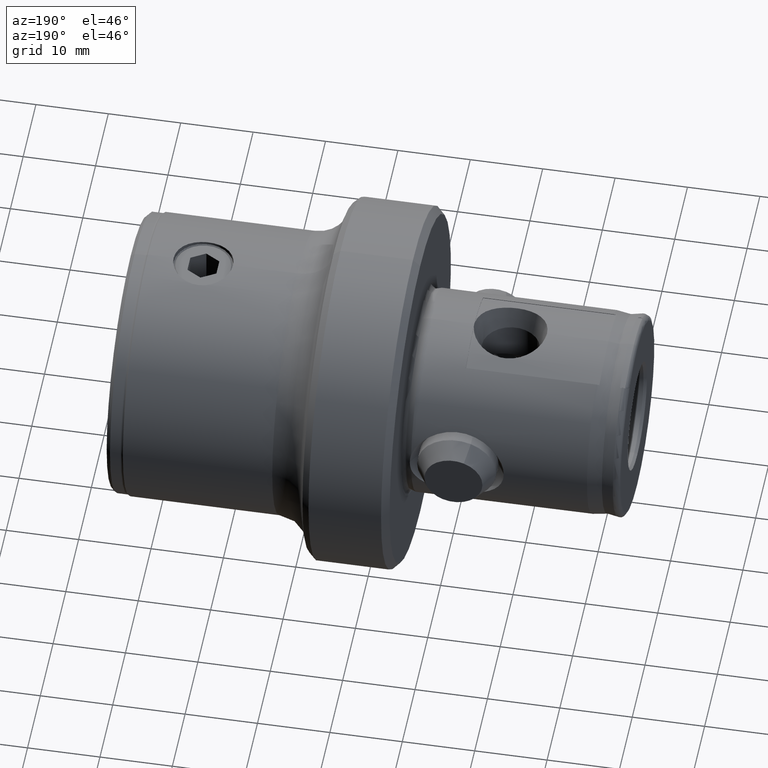
[diagram: clean part render]
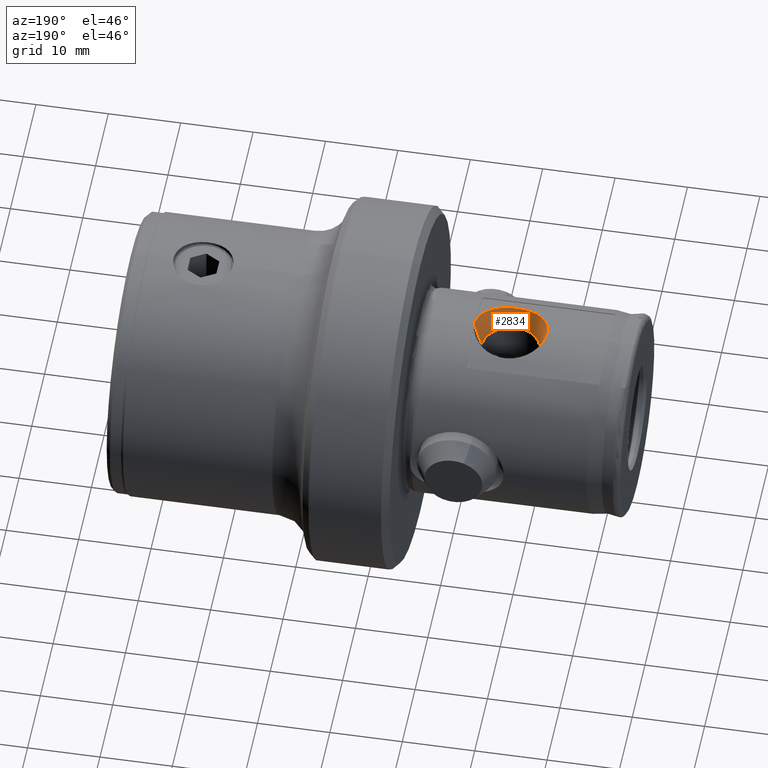
[diagram: same view with one face highlighted and labeled with its STEP entity id]
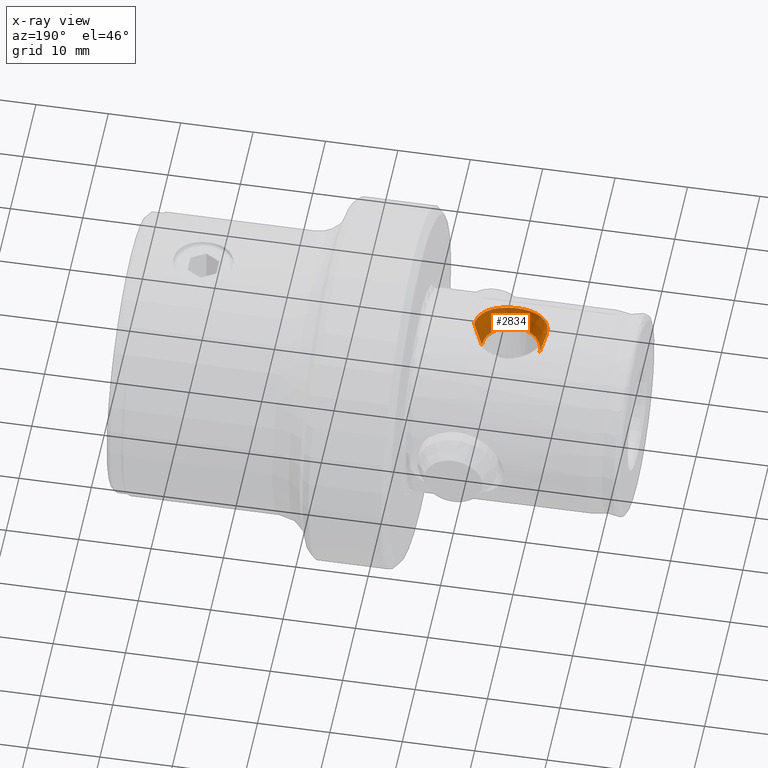
[diagram: x-ray of the same camera — body ghosted, the highlighted face saturated]
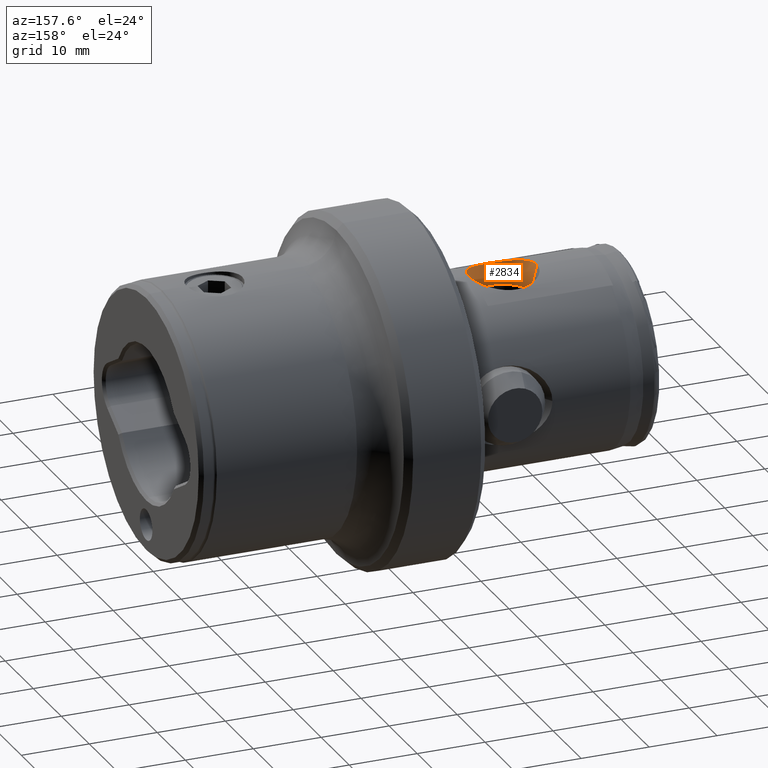
[diagram: same view with one face highlighted and labeled with its STEP entity id]
A machine part, auxiliary view. The second image highlights one B-rep face of the part: STEP entity #2834.
The next image is the same camera in x-ray: the body ghosted, the highlighted face saturated — about 0% of this face is hidden behind the body in this view.
A second angle (auxiliary view) of the same face is appended — the face is thin or edge-on in the first view.
In plain terms, the highlighted conical surface has half-angle 15 deg.
Its self-contained STEP definition (entity closure, byte-faithful):
#63 = DIRECTION ( 'NONE',  ( 0.2588190451025144700, 0.0000000000000000000, 0.9659258262890700900 ) ) ;
#93 = VERTEX_POINT ( 'NONE', #2497 ) ;
#146 = CARTESIAN_POINT ( 'NONE',  ( 21.50000000000000400, 0.0000000000000000000, 10.11153835707228400 ) ) ;
#259 = CONICAL_SURFACE ( 'NONE', #5150, 5.864514177785374600, 0.2617993877991427500 ) ;
#306 = CARTESIAN_POINT ( 'NONE',  ( 12.47684628644832600, -0.3149609745297546300, 13.93000000000000100 ) ) ;
#317 = CARTESIAN_POINT ( 'NONE',  ( 11.63548582221463000, 7.181958516379130500E-016, 17.07000000000000000 ) ) ;
#338 = CARTESIAN_POINT ( 'NONE',  ( 14.37281258025601000, -3.765870161739374800, 13.41518185675434800 ) ) ;
#349 = CARTESIAN_POINT ( 'NONE',  ( 20.25233547197260000, -4.023635976268969300, 13.34022736548512400 ) ) ;
#515 = FACE_OUTER_BOUND ( 'NONE', #3261, .T. ) ;
#583 = ORIENTED_EDGE ( 'NONE', *, *, #1697, .T. ) ;
#595 = CARTESIAN_POINT ( 'NONE',  ( 22.54191015702186400, -0.1037325836829058600, 14.00000000000000200 ) ) ;
#626 = CARTESIAN_POINT ( 'NONE',  ( 22.50000000000000000, -0.6195287105817886000, 13.98628557468940100 ) ) ;
#738 = EDGE_CURVE ( 'NONE', #2560, #1312, #3505, .T. ) ;
#756 = CARTESIAN_POINT ( 'NONE',  ( 15.16116720286703800, -4.255446821532061100, 13.26820723257597700 ) ) ;
#776 = ORIENTED_EDGE ( 'NONE', *, *, #3098, .F. ) ;
#779 = CARTESIAN_POINT ( 'NONE',  ( 20.99525875615347600, -3.458458489150855600, 13.49761447127724000 ) ) ;
#997 = CARTESIAN_POINT ( 'NONE',  ( 17.50000000000000400, 0.0000000000000000000, 10.11153835707228400 ) ) ;
#1054 = CARTESIAN_POINT ( 'NONE',  ( 22.50000000000000000, -0.5143158778262610900, 13.94096892549697000 ) ) ;
#1125 = ORIENTED_EDGE ( 'NONE', *, *, #2101, .T. ) ;
#1191 = CARTESIAN_POINT ( 'NONE',  ( 16.03594804406515100, -4.597752717891116200, 13.15369106819762700 ) ) ;
#1203 = CARTESIAN_POINT ( 'NONE',  ( 21.61270221245415600, -2.770980728955330100, 13.65516038541851900 ) ) ;
#1305 = DIRECTION ( 'NONE',  ( 1.542435424415811200E-016, 0.0000000000000000000, 1.000000000000000000 ) ) ;
#1312 = VERTEX_POINT ( 'NONE', #3203 ) ;
#1389 = B_SPLINE_CURVE_WITH_KNOTS ( 'NONE', 3,
 ( #626, #4026, #1054, #4052 ),
 .UNSPECIFIED., .F., .F.,
 ( 4, 4 ),
 ( 0.002973587855760522100, 0.003141529162926258100 ),
 .UNSPECIFIED. ) ;
#1418 = CARTESIAN_POINT ( 'NONE',  ( 22.50000000000000000, -0.6195287105817886000, 13.98628557468940100 ) ) ;
#1423 = EDGE_CURVE ( 'NONE', #2560, #1476, #3025, .T. ) ;
#1424 = DIRECTION ( 'NONE',  ( 1.000000000000000000, 0.0000000000000000000, 0.0000000000000000000 ) ) ;
#1476 = VERTEX_POINT ( 'NONE', #5220 ) ;
#1567 = DIRECTION ( 'NONE',  ( -0.2588190451025141300, 3.169619151431686100E-017, 0.9659258262890700900 ) ) ;
#1594 = CARTESIAN_POINT ( 'NONE',  ( 12.63637958919252000, -1.239667860239404700, 13.87839910281908800 ) ) ;
#1605 = CARTESIAN_POINT ( 'NONE',  ( 16.95351705558090700, -4.777184958684798300, 13.08973866433695000 ) ) ;
#1628 = CARTESIAN_POINT ( 'NONE',  ( 22.09246679610852800, -1.967786563727490900, 13.79375201079133700 ) ) ;
#1697 = EDGE_CURVE ( 'NONE', #93, #2055, #3353, .T. ) ;
#1858 = CARTESIAN_POINT ( 'NONE',  ( 22.51396394253156800, -0.5167509676191371900, 13.99083816030865900 ) ) ;
#1903 = VECTOR ( 'NONE', #63, 999.9999999999998900 ) ;
#2032 = CARTESIAN_POINT ( 'NONE',  ( 12.97920187934304600, -2.113966189612152200, 13.77247531753725500 ) ) ;
#2053 = CARTESIAN_POINT ( 'NONE',  ( 17.90015850140852300, -4.790217572305257600, 13.08506820883000200 ) ) ;
#2055 = VERTEX_POINT ( 'NONE', #3432 ) ;
#2066 = CARTESIAN_POINT ( 'NONE',  ( 22.40307277788182500, -1.088137564913072900, 13.89085307145456700 ) ) ;
#2101 = EDGE_CURVE ( 'NONE', #3250, #1476, #2618, .T. ) ;
#2201 = AXIS2_PLACEMENT_3D ( 'NONE', #997, #3991, #1424 ) ;
#2376 = ORIENTED_EDGE ( 'NONE', *, *, #1423, .F. ) ;
#2448 = CARTESIAN_POINT ( 'NONE',  ( 12.47684628644831400, 1.731427678223666100E-015, 13.93000000000000700 ) ) ;
#2464 = CARTESIAN_POINT ( 'NONE',  ( 13.48629527656921700, -2.900875694304178200, 13.62866467596753100 ) ) ;
#2476 = CARTESIAN_POINT ( 'NONE',  ( 18.82358572458601700, -4.636641384344371500, 13.14030698352085700 ) ) ;
#2489 = CARTESIAN_POINT ( 'NONE',  ( 22.50000000000000000, -0.4601276684633424100, 13.92243661871350100 ) ) ;
#2497 = CARTESIAN_POINT ( 'NONE',  ( 12.47684628644831400, 1.731427678223666100E-015, 13.93000000000000700 ) ) ;
#2560 = VERTEX_POINT ( 'NONE', #146 ) ;
#2618 = B_SPLINE_CURVE_WITH_KNOTS ( 'NONE', 3,
 ( #3472, #1858, #3145, #595, #3575 ),
 .UNSPECIFIED., .F., .F.,
 ( 4, 1, 4 ),
 ( 0.01089935162120170100, 0.01120844053823601100, 0.01151752945527032000 ),
 .UNSPECIFIED. ) ;
#2726 = ORIENTED_EDGE ( 'NONE', *, *, #738, .T. ) ;
#2834 = ADVANCED_FACE ( 'NONE', ( #515 ), #259, .F. ) ;
#2887 = CARTESIAN_POINT ( 'NONE',  ( 14.12810773918985100, -3.568346146378242900, 13.46943704025527700 ) ) ;
#2899 = LINE ( 'NONE', #317, #4929 ) ;
#2903 = CARTESIAN_POINT ( 'NONE',  ( 19.70833720039761200, -4.318444077529482800, 13.24821629246133600 ) ) ;
#3025 = LINE ( 'NONE', #3038, #1903 ) ;
#3038 = CARTESIAN_POINT ( 'NONE',  ( 23.36451417778538100, 0.0000000000000000000, 17.07000000000000000 ) ) ;
#3098 = EDGE_CURVE ( 'NONE', #3250, #2055, #1389, .T. ) ;
#3145 = CARTESIAN_POINT ( 'NONE',  ( 22.53489710086665100, -0.3107178230748488000, 13.99769451029315300 ) ) ;
#3203 = CARTESIAN_POINT ( 'NONE',  ( 13.50000000000000500, 5.540446777818696400E-016, 10.11153835707228400 ) ) ;
#3250 = VERTEX_POINT ( 'NONE', #1418 ) ;
#3261 = EDGE_LOOP ( 'NONE', ( #2726, #3616, #583, #776, #1125, #2376 ) ) ;
#3313 = CARTESIAN_POINT ( 'NONE',  ( 14.88900317628137100, -4.108705987543245000, 13.31470929429331200 ) ) ;
#3323 = CARTESIAN_POINT ( 'NONE',  ( 20.51311923206156600, -3.849854531591155200, 13.39178731253685800 ) ) ;
#3353 = B_SPLINE_CURVE_WITH_KNOTS ( 'NONE', 3,
 ( #2448, #306, #4158, #1594, #4607, #2032, #5027, #2464, #5459, #2887, #338, #3313, #756, #3746, #1191, #4181, #1605, #4623, #2053, #5042, #2476, #5479, #2903, #349, #3323, #779, #3758, #1203, #4197, #1628, #4630, #2066, #5060, #2489 ),
 .UNSPECIFIED., .F., .F.,
 ( 4, 2, 2, 2, 2, 2, 2, 2, 2, 2, 2, 2, 2, 2, 2, 2, 4 ),
 ( 0.01501490917538173500, 0.01595262293013784100, 0.01689033668489394600, 0.01782805043965005100, 0.01876576419440615500, 0.01970347794916226000, 0.02064119170391836400, 0.02157890545867447600, 0.02251661921343058700, 0.02345433296818669500, 0.02439204672294280300, 0.02532976047769891500, 0.02626747423245502600, 0.02720518798721113800, 0.02814290174196724600, 0.02908061549672335400, 0.03001832925147946600 ),
 .UNSPECIFIED. ) ;
#3432 = CARTESIAN_POINT ( 'NONE',  ( 22.50000000000000000, -0.4601276684633424100, 13.92243661871350100 ) ) ;
#3433 = CARTESIAN_POINT ( 'NONE',  ( 17.50000000000000400, 0.0000000000000000000, 17.07000000000000000 ) ) ;
#3472 = CARTESIAN_POINT ( 'NONE',  ( 22.50000000000000000, -0.6195287105817886000, 13.98628557468940100 ) ) ;
#3487 = EDGE_CURVE ( 'NONE', #1312, #93, #2899, .T. ) ;
#3505 = CIRCLE ( 'NONE', #2201, 4.000000000000000000 ) ;
#3575 = CARTESIAN_POINT ( 'NONE',  ( 22.54191015702185300, -7.143214382866784000E-023, 13.99999999999999800 ) ) ;
#3616 = ORIENTED_EDGE ( 'NONE', *, *, #3487, .T. ) ;
#3746 = CARTESIAN_POINT ( 'NONE',  ( 15.73411841391183700, -4.500205134743791500, 13.18763001351505100 ) ) ;
#3758 = CARTESIAN_POINT ( 'NONE',  ( 21.21510109451232400, -3.242868601581357700, 13.55138631118658500 ) ) ;
#3861 = DIRECTION ( 'NONE',  ( 1.000000000000000000, 0.0000000000000000000, 0.0000000000000000000 ) ) ;
#3991 = DIRECTION ( 'NONE',  ( -1.542435424415811200E-016, -0.0000000000000000000, -1.000000000000000000 ) ) ;
#4026 = CARTESIAN_POINT ( 'NONE',  ( 22.50000000000000000, -0.5678188571875567600, 13.96255524141807800 ) ) ;
#4052 = CARTESIAN_POINT ( 'NONE',  ( 22.50000000000000000, -0.4601276684633424100, 13.92243661871350100 ) ) ;
#4158 = CARTESIAN_POINT ( 'NONE',  ( 12.50900355231769900, -0.6258472104104401100, 13.91938630549804800 ) ) ;
#4181 = CARTESIAN_POINT ( 'NONE',  ( 16.64416537715305500, -4.735487217438253200, 13.10499511709525300 ) ) ;
#4197 = CARTESIAN_POINT ( 'NONE',  ( 21.79199729124428900, -2.511345034040935800, 13.70566513447192000 ) ) ;
#4607 = CARTESIAN_POINT ( 'NONE',  ( 12.73266211553295900, -1.542789390847027400, 13.84771449854254000 ) ) ;
#4623 = CARTESIAN_POINT ( 'NONE',  ( 17.58306971877026500, -4.804921636073570000, 13.07963672176236400 ) ) ;
#4630 = CARTESIAN_POINT ( 'NONE',  ( 22.21503025668624100, -1.683403279844131600, 13.83164073914757400 ) ) ;
#4929 = VECTOR ( 'NONE', #1567, 1000.000000000000100 ) ;
#5027 = CARTESIAN_POINT ( 'NONE',  ( 13.13075755083897700, -2.386868032696373800, 13.72751262702438300 ) ) ;
#5042 = CARTESIAN_POINT ( 'NONE',  ( 18.51885556148542700, -4.705992480211712300, 13.11543282358158400 ) ) ;
#5060 = CARTESIAN_POINT ( 'NONE',  ( 22.46815623844412700, -0.7758062109083798700, 13.91205583688992100 ) ) ;
#5150 = AXIS2_PLACEMENT_3D ( 'NONE', #3433, #1305, #3861 ) ;
#5220 = CARTESIAN_POINT ( 'NONE',  ( 22.54191015702185300, -7.143214382866784000E-023, 13.99999999999999800 ) ) ;
#5459 = CARTESIAN_POINT ( 'NONE',  ( 13.68616697719140300, -3.136540223769875600, 13.57593584229688200 ) ) ;
#5479 = CARTESIAN_POINT ( 'NONE',  ( 19.42290762722884200, -4.441356566760550400, 13.20723637557032100 ) ) ;